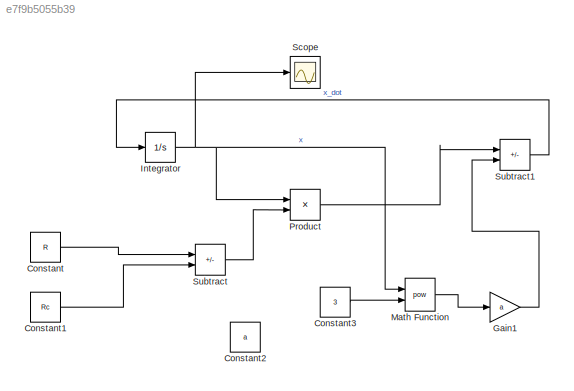
MODEL slx_e7f9b5055b39
KIND model
CONFIG AbsTol = auto
CONFIG EnableMultiTasking = off
CONFIG FixedStep = auto
CONFIG MaxStep = auto
CONFIG MinStep = auto
CONFIG RelTol = 1e-3
CONFIG SampleTimeConstraint = Unconstrained
CONFIG SolverName = VariableStepAuto
CONFIG StartTime = 0.0
CONFIG StopTime = 10.0
BLOCK [Constant] Constant
  Value = R
BLOCK [Constant] Constant1
  Value = Rc
BLOCK [Constant] Constant2
  Value = a
BLOCK [Constant] Constant3
  Value = 3
BLOCK [Gain] Gain1
  Gain = a
BLOCK [Integrator] Integrator
  InitialCondition = .2
  Ports = [1, 1]
BLOCK [Math] Math Function
  Operator = pow
  OutputSignalType = real
  Ports = [2, 1]
BLOCK [Product] Product
  Ports = [2, 1]
BLOCK [Scope] Scope
  Floating = off
  NumInputPorts = 1
  Ports = [1]
  ScopeSpecificationString = Simulink.scopes.TimeScopeBlockCfg('CurrentConfiguration', extmgr.ConfigurationSet(extmgr.Configuration('Core','General UI',true),extmgr.Configuration('Core','Source UI',true),extmgr.Configuration('Sources','WiredSimulink',true),extmgr.Configuration('Visuals','Time Domain',true,'SerializedDisplays',{struct('MinYLimReal','-0.05451','MaxYLimReal','2.49058','YLabelReal','','MinYLimMag','0.00000','MaxY...<+1380ch>
BLOCK [Sum] Subtract
  IconShape = rectangular
  Inputs = +-
  Ports = [2, 1]
BLOCK [Sum] Subtract1
  IconShape = rectangular
  Inputs = +-
  Ports = [2, 1]
LINE Constant1:1 -> Subtract:2
LINE Constant3:1 -> Math Function:2
LINE Constant:1 -> Subtract:1
LINE Gain1:1 -> Subtract1:2
NET Integrator:1 -> Math Function:1, Product:1, Scope:1
LINE Math Function:1 -> Gain1:1
LINE Product:1 -> Subtract1:1
LINE Subtract1:1 -> Integrator:1
LINE Subtract:1 -> Product:2
note: NET lines group one-source signal fan-out (src -> all destinations, sorted); 1:1 wires keep LINE
